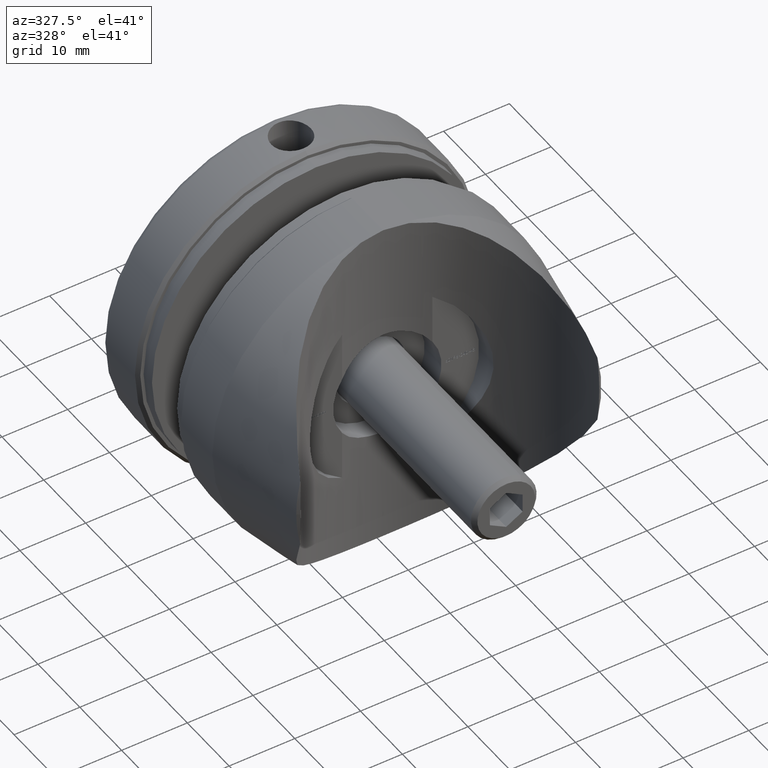
[diagram: clean part render]
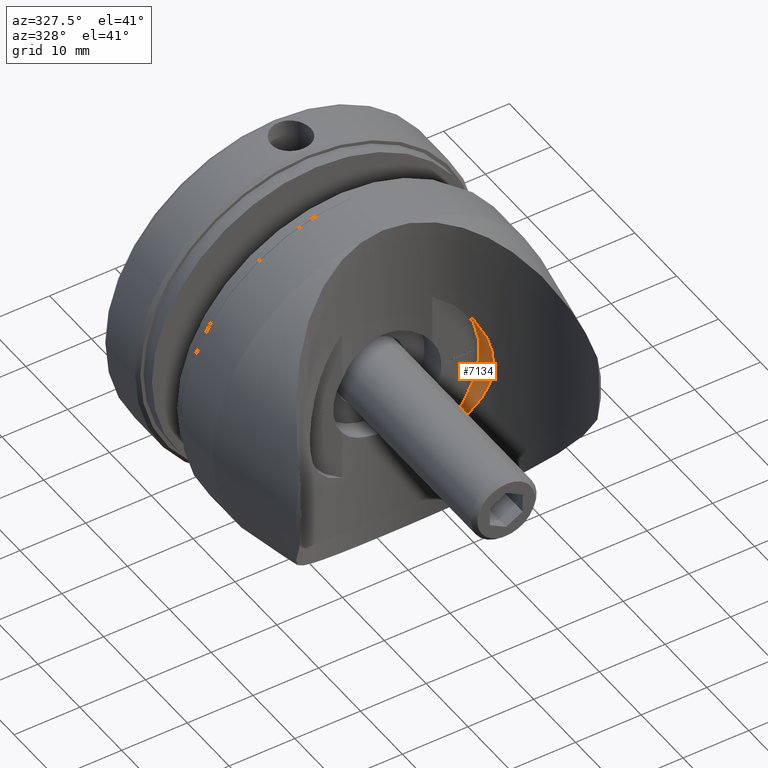
[diagram: same view with one face highlighted and labeled with its STEP entity id]
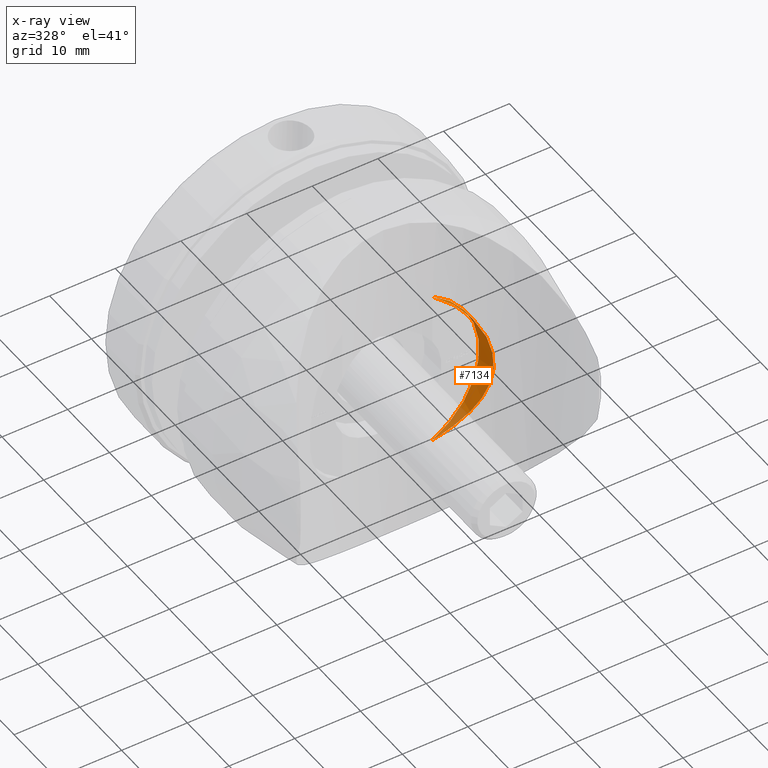
[diagram: x-ray of the same camera — body ghosted, the highlighted face saturated]
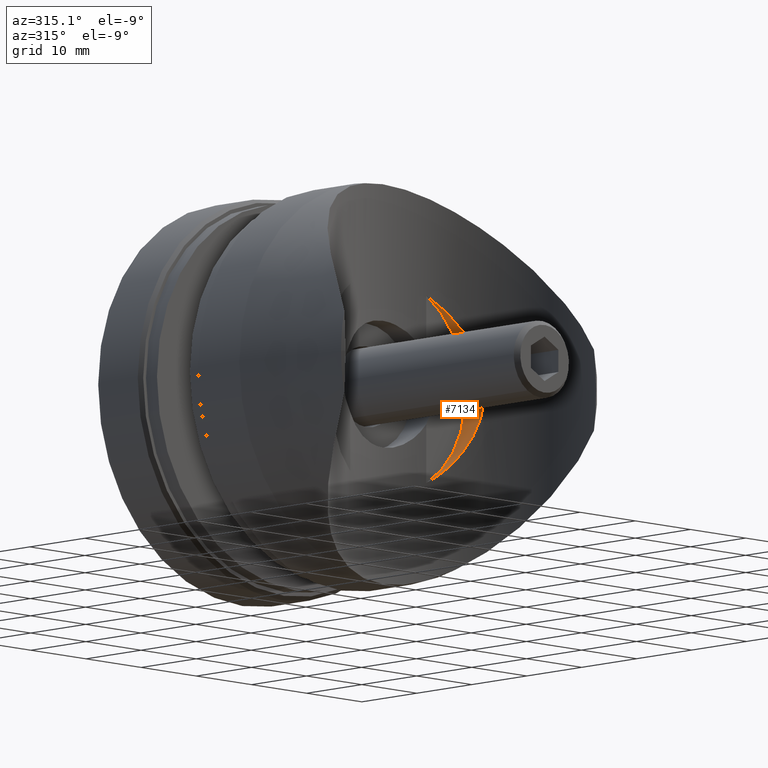
[diagram: same view with one face highlighted and labeled with its STEP entity id]
A machine part, auxiliary view. The second image highlights one B-rep face of the part: STEP entity #7134.
The next image is the same camera in x-ray: the body ghosted, the highlighted face saturated — about 15% of this face is hidden behind the body in this view.
A second angle (auxiliary view) of the same face is appended — the face is thin or edge-on in the first view.
In plain terms, the highlighted cylindrical surface (partial cylindrical patch) has radius 14 mm, axis along (0, 1, 0).
Its self-contained STEP definition (entity closure, byte-faithful):
#54 = CARTESIAN_POINT ( 'NONE',  ( 12.34900754116327803, -7.395457617166043995, -6.602810312510439594 ) ) ;
#547 = EDGE_CURVE ( 'NONE', #18089, #9124, #9342, .T. ) ;
#1030 = ORIENTED_EDGE ( 'NONE', *, *, #547, .T. ) ;
#1475 = CARTESIAN_POINT ( 'NONE',  ( 10.00381424177280287, -6.168142998403239652, 9.798723485109878339 ) ) ;
#1531 = CARTESIAN_POINT ( 'NONE',  ( 7.958895017984475295, -5.321265523534500552, 11.58435954133043744 ) ) ;
#1726 = CARTESIAN_POINT ( 'NONE',  ( 13.95841783367366240, -8.442241585121104563, -1.249439067772333045 ) ) ;
#2954 = CARTESIAN_POINT ( 'NONE',  ( 14.00071840038231485, -8.472541193778793556, -0.6191303456287511331 ) ) ;
#2990 = EDGE_CURVE ( 'NONE', #18089, #9124, #18982, .T. ) ;
#3023 = CARTESIAN_POINT ( 'NONE',  ( 10.81646700441277886, -6.556691131735758127, 8.893603892437338843 ) ) ;
#3027 = DIRECTION ( 'NONE',  ( 0.000000000000000000, 0.000000000000000000, 1.000000000000000000 ) ) ;
#3091 = CARTESIAN_POINT ( 'NONE',  ( 12.61857549890762087, -7.556866936524611056, 6.095349411138482942 ) ) ;
#3150 = CARTESIAN_POINT ( 'NONE',  ( 13.95424650036279424, -8.439272637365565544, 1.295933495090184406 ) ) ;
#3337 = ORIENTED_EDGE ( 'NONE', *, *, #2990, .F. ) ;
#4266 = AXIS2_PLACEMENT_3D ( 'NONE', #12956, #7371, #3027 ) ;
#4512 = CARTESIAN_POINT ( 'NONE',  ( 10.67526052941098591, -6.466544047677073692, -9.139559761874165744 ) ) ;
#4577 = CARTESIAN_POINT ( 'NONE',  ( 11.37946251577218248, -6.844880469629507580, 8.177800894167329915 ) ) ;
#4708 = CARTESIAN_POINT ( 'NONE',  ( 13.83159351383094560, -8.353227828562259205, -2.187841966190298137 ) ) ;
#4955 = DIRECTION ( 'NONE',  ( 0.000000000000000000, 1.000000000000000000, 0.000000000000000000 ) ) ;
#5041 = CARTESIAN_POINT ( 'NONE',  ( 6.877499545619744303, -4.999999999999999112, 12.19426094521518067 ) ) ;
#5946 = AXIS2_PLACEMENT_3D ( 'NONE', #18219, #4955, #15283 ) ;
#5957 = CARTESIAN_POINT ( 'NONE',  ( 13.78043014446338788, -8.317362414682262894, 2.549545851744691394 ) ) ;
#6084 = CARTESIAN_POINT ( 'NONE',  ( 13.32624637737543871, -8.008640876325605618, -4.336484982725683501 ) ) ;
#6215 = CARTESIAN_POINT ( 'NONE',  ( 12.20027398501990668, -7.307538174154906585, -6.873643850216991424 ) ) ;
#6604 = CYLINDRICAL_SURFACE ( 'NONE', #4266, 14.00000000000000000 ) ;
#7134 = ADVANCED_FACE ( 'NONE', ( #8668 ), #6604, .F. ) ;
#7371 = DIRECTION ( 'NONE',  ( -0.000000000000000000, 1.000000000000000000, -0.000000000000000000 ) ) ;
#7610 = CARTESIAN_POINT ( 'NONE',  ( 12.98449646312147898, -7.787138687132043380, 5.243880682811198568 ) ) ;
#7669 = CARTESIAN_POINT ( 'NONE',  ( 11.72151539025574607, -7.032324545175997699, 7.679393248334524635 ) ) ;
#8668 = FACE_OUTER_BOUND ( 'NONE', #12316, .T. ) ;
#8838 = CARTESIAN_POINT ( 'NONE',  ( 12.34106472926932341, -7.388298215048381579, 6.638156751279138845 ) ) ;
#8897 = CARTESIAN_POINT ( 'NONE',  ( 12.75791472421370720, -7.644426046604429814, -5.773283430868742627 ) ) ;
#9095 = CARTESIAN_POINT ( 'NONE',  ( 13.09844972115514672, -7.860383567104395119, 4.952604007209460590 ) ) ;
#9124 = VERTEX_POINT ( 'NONE', #16049 ) ;
#9342 = CIRCLE ( 'NONE', #5946, 14.00000000000000000 ) ;
#10331 = CARTESIAN_POINT ( 'NONE',  ( 13.30640725333250529, -7.996155550364175468, 4.363163709777189148 ) ) ;
#10460 = CARTESIAN_POINT ( 'NONE',  ( 13.77871921396429222, -8.316307248188550716, -2.499464025685816271 ) ) ;
#11805 = CARTESIAN_POINT ( 'NONE',  ( 13.12084060159958732, -7.873219018262494373, -4.921818834661151776 ) ) ;
#11869 = CARTESIAN_POINT ( 'NONE',  ( 12.62776128598978076, -7.563872105793762124, -6.052663560678013255 ) ) ;
#11926 = CARTESIAN_POINT ( 'NONE',  ( 6.877499545619744303, -4.999999999999999112, 12.19426094521518067 ) ) ;
#11992 = CARTESIAN_POINT ( 'NONE',  ( 13.40035492085664082, -8.058627915331728175, 4.065463000427869567 ) ) ;
#12316 = EDGE_LOOP ( 'NONE', ( #1030, #3337 ) ) ;
#12956 = CARTESIAN_POINT ( 'NONE',  ( 0.000000000000000000, -13.00000000000000000, 0.000000000000000000 ) ) ;
#13359 = CARTESIAN_POINT ( 'NONE',  ( 11.42018749867256844, -6.858682007987877860, -8.190113486517235586 ) ) ;
#13492 = CARTESIAN_POINT ( 'NONE',  ( 13.65151174550991797, -8.228536740170623531, -3.120360661072862918 ) ) ;
#14903 = CARTESIAN_POINT ( 'NONE',  ( 13.57718582418122999, -8.177701745655667764, -3.429068565169197669 ) ) ;
#15026 = CARTESIAN_POINT ( 'NONE',  ( 8.930725573676735252, -5.691692180068306683, -10.85057052598368621 ) ) ;
#15283 = DIRECTION ( 'NONE',  ( 0.000000000000000000, 0.000000000000000000, 1.000000000000000000 ) ) ;
#16049 = CARTESIAN_POINT ( 'NONE',  ( 6.877499545619744303, -4.999999999999999112, -12.19426094521518067 ) ) ;
#16263 = CARTESIAN_POINT ( 'NONE',  ( 10.61971475387567310, -6.459106436739065593, 9.127656442147603855 ) ) ;
#16322 = CARTESIAN_POINT ( 'NONE',  ( 13.65225625943449650, -8.228168356679921303, 3.163211133931879804 ) ) ;
#16388 = CARTESIAN_POINT ( 'NONE',  ( 6.877499545619744303, -4.999999999999999112, -12.19426094521518067 ) ) ;
#17775 = CARTESIAN_POINT ( 'NONE',  ( 10.21340606361972014, -6.264855686881678487, 9.580124746535361169 ) ) ;
#17843 = CARTESIAN_POINT ( 'NONE',  ( 7.959112586221053220, -5.321330159622975842, -11.58423683398023663 ) ) ;
#17966 = CARTESIAN_POINT ( 'NONE',  ( 13.99926322918244814, -8.471505905242739942, 0.6512043855368431222 ) ) ;
#18089 = VERTEX_POINT ( 'NONE', #5041 ) ;
#18219 = CARTESIAN_POINT ( 'NONE',  ( 0.000000000000000000, -4.999999999999999112, 0.000000000000000000 ) ) ;
#18982 = B_SPLINE_CURVE_WITH_KNOTS ( 'NONE', 3,
 ( #11926, #1531, #19196, #1475, #17775, #16263, #3023, #4577, #7669, #8838, #3091, #7610, #9095, #10331, #11992, #16322, #5957, #3150, #17966, #2954, #1726, #4708, #10460, #13492, #14903, #6084, #11805, #8897, #11869, #54, #6215, #13359, #4512, #15026, #17843, #16388 ),
 .UNSPECIFIED., .F., .F.,
 ( 4, 2, 2, 2, 2, 2, 2, 2, 2, 2, 2, 2, 2, 2, 2, 2, 2, 4 ),
 ( 0.000000000000000000, 0.003790074025278851108, 0.004737592531598563451, 0.005685111037918275795, 0.007580148050557698747, 0.009475185063197123433, 0.01042270356951683317, 0.01137022207583654292, 0.01326525908847596587, 0.01516029610111538709, 0.01705533311375481004, 0.01800285162007451978, 0.01895037012639423646, 0.02084540713903366288, 0.02179292564535336915, 0.02274044415167307542, 0.02653051817695191786, 0.03032059220223076029 ),
 .UNSPECIFIED. ) ;
#19196 = CARTESIAN_POINT ( 'NONE',  ( 8.923712114009541452, -5.689295468151484236, 10.85485436341376442 ) ) ;